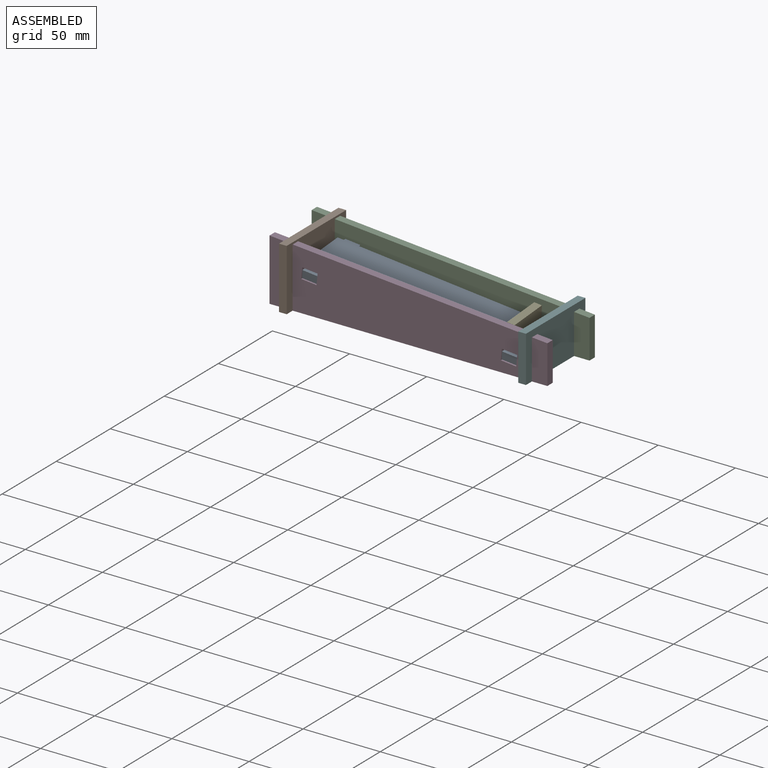
[diagram: assembled view]
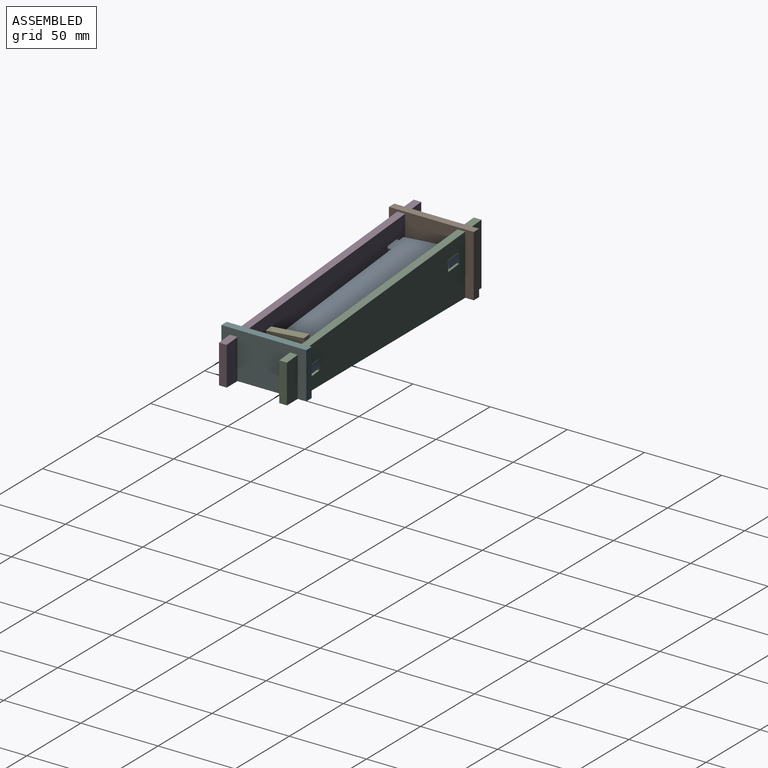
[diagram: assembled view, second angle]
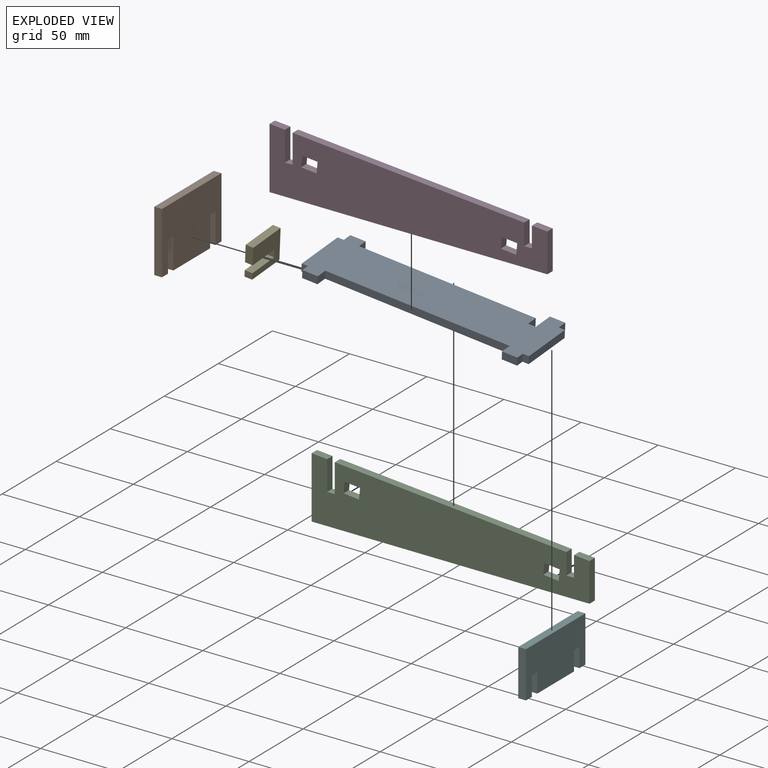
[diagram: exploded view]
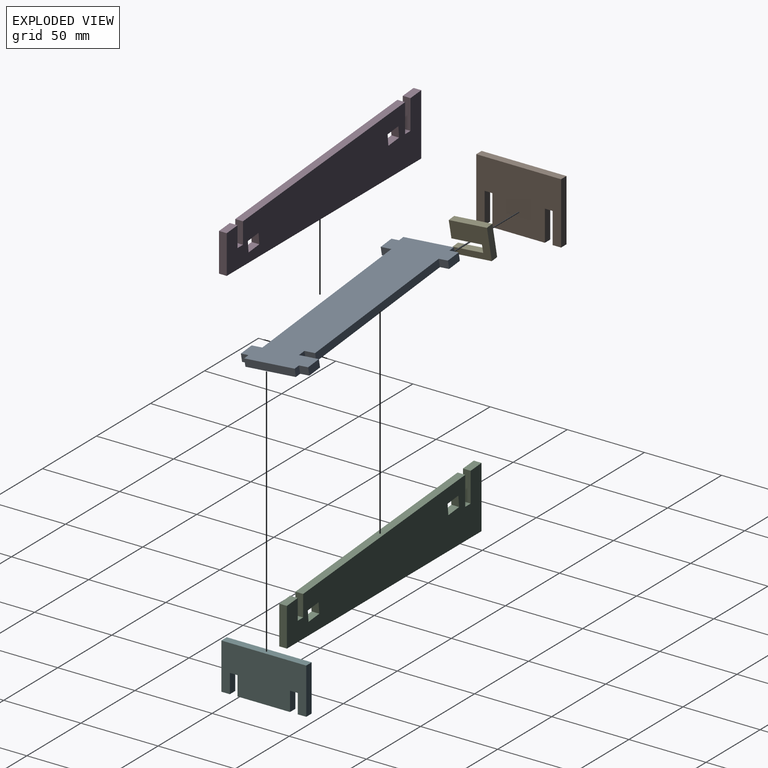
[diagram: exploded view, second angle]
ASSEMBLY  parts=6 mates=4
PART A: 24 faces, bbox 148x44x5 mm
  f0: plane 6x5mm, normal (1,0,0), area 30mm2, adj f8,f9,f11,f22
  f1: plane 6x5mm, normal (-1,0,0), area 30mm2, adj f6,f8,f9,f18
  f2: plane 7x5mm, normal (1,0,0), area 35mm2, adj f8,f9,f15,f17
  f3: plane 7x5mm, normal (1,0,0), area 35mm2, adj f8,f9,f13,f16
  f4: plane 7x5mm, normal (-1,0,0), area 35mm2, adj f8,f9,f14,f16
  f5: plane 6x5mm, normal (1,0,0), area 30mm2, adj f6,f8,f9,f17
  f6: plane 10x5mm, normal (0,1,0), area 50mm2, adj f1,f5,f8,f9
  f7: plane 5x5mm, normal (-1,0,0), area 25mm2, adj f8,f9,f13,f20
  f8: plane 148x44mm, normal (0,0,-1), area 4829mm2, adj f0,f1,f2,f3,f4,f5,f6,f7
  f9: plane 148x44mm, normal (0,0,1), area 4829mm2, adj f0,f1,f2,f3,f4,f5,f6,f7
  f10: plane 5x5mm, normal (1,0,0), area 25mm2, adj f8,f9,f14,f23
  f11: plane 10x5mm, normal (0,1,0), area 50mm2, adj f0,f8,f9,f12
  f12: plane 13x5mm, normal (-1,0,0), area 65mm2, adj f8,f9,f11,f15
  f13: plane 10x5mm, normal (0,-1,0), area 50mm2, adj f3,f7,f8,f9
  f14: plane 10x5mm, normal (0,-1,0), area 50mm2, adj f4,f8,f9,f10
  f15: plane 5x5mm, normal (0,1,0), area 25mm2, adj f2,f8,f9,f12
  f16: plane 120x5mm, normal (0,-1,0), area 600mm2, adj f3,f4,f8,f9
  f17: plane 115x5mm, normal (0,1,0), area 575mm2, adj f2,f5,f8,f9
  f18: plane 5x4mm, normal (0,1,0), area 20mm2, adj f1,f8,f9,f19
  f19: plane 33x5mm, normal (-1,0,0), area 165mm2, adj f8,f9,f18,f20
  f20: plane 5x4mm, normal (0,-1,0), area 20mm2, adj f7,f8,f9,f19
  f21: plane 33x5mm, normal (1,0,0), area 165mm2, adj f8,f9,f22,f23
  f22: plane 5x4mm, normal (0,1,0), area 20mm2, adj f0,f8,f9,f21
  f23: plane 5x4mm, normal (0,-1,0), area 20mm2, adj f8,f9,f10,f21
PART B: 14 faces, bbox 55x40x5 mm
  f0: plane 34x5mm, normal (0,-1,0), area 170mm2, adj f6,f7,f10,f11
  f1: plane 5.5x5mm, normal (0,-1,0), area 27.5mm2, adj f4,f6,f7,f8
  f2: plane 40x5mm, normal (-1,0,0), area 200mm2, adj f3,f5,f6,f7
  f3: plane 5.5x5mm, normal (0,-1,0), area 27.5mm2, adj f2,f6,f7,f13
  f4: plane 40x5mm, normal (1,0,0), area 200mm2, adj f1,f5,f6,f7
  f5: plane 55x5mm, normal (0,1,0), area 275mm2, adj f2,f4,f6,f7
  f6: plane 55x40mm, normal (0,0,1), area 2000mm2, adj f0,f1,f2,f3,f4,f5,f8,f9
  f7: plane 55x40mm, normal (0,0,-1), area 2000mm2, adj f0,f1,f2,f3,f4,f5,f8,f9
  f8: plane 20x5mm, normal (-1,0,0), area 100mm2, adj f1,f6,f7,f9
  f9: plane 5x5mm, normal (0,-1,0), area 25mm2, adj f6,f7,f8,f10
  f10: plane 20x5mm, normal (1,0,0), area 100mm2, adj f0,f6,f7,f9
  f11: plane 20x5mm, normal (-1,0,0), area 100mm2, adj f0,f6,f7,f12
  f12: plane 5x5mm, normal (0,-1,0), area 25mm2, adj f6,f7,f11,f13
  f13: plane 20x5mm, normal (1,0,0), area 100mm2, adj f3,f6,f7,f12
PART C: 22 faces, bbox 180x40x5 mm
  f0: plane 150x12.5mm, normal (0.08,1,0), area 752.6mm2, adj f3,f4,f10,f12
  f1: plane 10x5mm, normal (0.08,1,0), area 50.2mm2, adj f2,f3,f4,f9
  f2: plane 25x5mm, normal (1,0,0), area 125mm2, adj f1,f3,f4,f6
  f3: plane 180x40mm, normal (0,0,1), area 5547.5mm2, adj f0,f1,f2,f5,f6,f7,f8,f9
  f4: plane 180x40mm, normal (0,0,-1), area 5547.5mm2, adj f0,f1,f2,f5,f6,f7,f8,f9
  f5: plane 40x5mm, normal (-1,0,0), area 200mm2, adj f3,f4,f6,f7
  f6: plane 180x5mm, normal (0,-1,0), area 900mm2, adj f2,f3,f4,f5
  f7: plane 10x5mm, normal (0.08,1,0), area 50.2mm2, adj f3,f4,f5,f13
  f8: plane 5x5mm, normal (0,1,0), area 25mm2, adj f3,f4,f9,f10
  f9: plane 13.33x5mm, normal (-1,0,0), area 66.7mm2, adj f1,f3,f4,f8
  f10: plane 13.75x5mm, normal (1,0,0), area 68.8mm2, adj f0,f3,f4,f8
  f11: plane 5x5mm, normal (0,1,0), area 25mm2, adj f3,f4,f12,f13
  f12: plane 18.75x5mm, normal (-1,0,0), area 93.8mm2, adj f0,f3,f4,f11
  f13: plane 19.17x5mm, normal (1,0,0), area 95.8mm2, adj f3,f4,f7,f11
  f14: plane 6.96x5mm, normal (0.99,-0.1,0), area 35mm2, adj f3,f4,f15,f17
  f15: plane 9.95x5mm, normal (-0.1,-0.99,0), area 50mm2, adj f3,f4,f14,f16
  f16: plane 6.96x5mm, normal (-0.99,0.1,0), area 35mm2, adj f3,f4,f15,f17
  f17: plane 9.95x5mm, normal (0.1,0.99,0), area 50mm2, adj f3,f4,f14,f16
  f18: plane 6.96x5mm, normal (0.99,-0.1,0), area 35mm2, adj f3,f4,f19,f21
  f19: plane 9.95x5mm, normal (-0.1,-0.99,0), area 50mm2, adj f3,f4,f18,f20
  f20: plane 6.96x5mm, normal (-0.99,0.1,0), area 35mm2, adj f3,f4,f19,f21
  f21: plane 9.95x5mm, normal (0.1,0.99,0), area 50mm2, adj f3,f4,f18,f20
PART D: 22 faces, bbox 180x40x5 mm
  f0: plane 150x12.5mm, normal (0.08,1,0), area 752.6mm2, adj f3,f4,f10,f12
  f1: plane 10x5mm, normal (0.08,1,0), area 50.2mm2, adj f2,f3,f4,f9
  f2: plane 25x5mm, normal (1,0,0), area 125mm2, adj f1,f3,f4,f6
  f3: plane 180x40mm, normal (0,0,1), area 5547.5mm2, adj f0,f1,f2,f5,f6,f7,f8,f9
  f4: plane 180x40mm, normal (0,0,-1), area 5547.5mm2, adj f0,f1,f2,f5,f6,f7,f8,f9
  f5: plane 40x5mm, normal (-1,0,0), area 200mm2, adj f3,f4,f6,f7
  f6: plane 180x5mm, normal (0,-1,0), area 900mm2, adj f2,f3,f4,f5
  f7: plane 10x5mm, normal (0.08,1,0), area 50.2mm2, adj f3,f4,f5,f13
  f8: plane 5x5mm, normal (0,1,0), area 25mm2, adj f3,f4,f9,f10
  f9: plane 13.33x5mm, normal (-1,0,0), area 66.7mm2, adj f1,f3,f4,f8
  f10: plane 13.75x5mm, normal (1,0,0), area 68.8mm2, adj f0,f3,f4,f8
  f11: plane 5x5mm, normal (0,1,0), area 25mm2, adj f3,f4,f12,f13
  f12: plane 18.75x5mm, normal (-1,0,0), area 93.8mm2, adj f0,f3,f4,f11
  f13: plane 19.17x5mm, normal (1,0,0), area 95.8mm2, adj f3,f4,f7,f11
  f14: plane 6.96x5mm, normal (0.99,-0.1,0), area 35mm2, adj f3,f4,f15,f17
  f15: plane 9.95x5mm, normal (-0.1,-0.99,0), area 50mm2, adj f3,f4,f14,f16
  f16: plane 6.96x5mm, normal (-0.99,0.1,0), area 35mm2, adj f3,f4,f15,f17
  f17: plane 9.95x5mm, normal (0.1,0.99,0), area 50mm2, adj f3,f4,f14,f16
  f18: plane 6.96x5mm, normal (0.99,-0.1,0), area 35mm2, adj f3,f4,f19,f21
  f19: plane 9.95x5mm, normal (-0.1,-0.99,0), area 50mm2, adj f3,f4,f18,f20
  f20: plane 6.96x5mm, normal (-0.99,0.1,0), area 35mm2, adj f3,f4,f19,f21
  f21: plane 9.95x5mm, normal (0.1,0.99,0), area 50mm2, adj f3,f4,f18,f20
PART E: 10 faces, bbox 20x25x5 mm
  f0: plane 5x4mm, normal (0,-1,0), area 20mm2, adj f1,f2,f5,f7
  f1: plane 25x20mm, normal (0,0,1), area 400mm2, adj f0,f3,f4,f5,f6,f7,f8,f9
  f2: plane 25x20mm, normal (0,0,-1), area 400mm2, adj f0,f3,f4,f5,f6,f7,f8,f9
  f3: plane 25x5mm, normal (1,0,0), area 125mm2, adj f1,f2,f4,f6
  f4: plane 20x5mm, normal (0,1,0), area 100mm2, adj f1,f2,f3,f5
  f5: plane 25x5mm, normal (-1,0,0), area 125mm2, adj f0,f1,f2,f4
  f6: plane 11x5mm, normal (0,-1,0), area 55mm2, adj f1,f2,f3,f8
  f7: plane 20x5mm, normal (1,0,0), area 100mm2, adj f0,f1,f2,f9
  f8: plane 20x5mm, normal (-1,0,0), area 100mm2, adj f1,f2,f6,f9
  f9: plane 5x5mm, normal (0,-1,0), area 25mm2, adj f1,f2,f7,f8
PART F: 14 faces, bbox 55x30x5 mm
  f0: plane 34x5mm, normal (0,-1,0), area 170mm2, adj f6,f7,f10,f11
  f1: plane 5.5x5mm, normal (0,-1,0), area 27.5mm2, adj f4,f6,f7,f8
  f2: plane 30x5mm, normal (-1,0,0), area 150mm2, adj f3,f5,f6,f7
  f3: plane 5.5x5mm, normal (0,-1,0), area 27.5mm2, adj f2,f6,f7,f13
  f4: plane 30x5mm, normal (1,0,0), area 150mm2, adj f1,f5,f6,f7
  f5: plane 55x5mm, normal (0,1,0), area 275mm2, adj f2,f4,f6,f7
  f6: plane 55x30mm, normal (0,0,1), area 1525mm2, adj f0,f1,f2,f3,f4,f5,f8,f9
  f7: plane 55x30mm, normal (0,0,-1), area 1525mm2, adj f0,f1,f2,f3,f4,f5,f8,f9
  f8: plane 12.5x5mm, normal (-1,0,0), area 62.5mm2, adj f1,f6,f7,f9
  f9: plane 5x5mm, normal (0,-1,0), area 25mm2, adj f6,f7,f8,f10
  f10: plane 12.5x5mm, normal (1,0,0), area 62.5mm2, adj f0,f6,f7,f9
  f11: plane 12.5x5mm, normal (-1,0,0), area 62.5mm2, adj f0,f6,f7,f12
  f12: plane 5x5mm, normal (0,-1,0), area 25mm2, adj f6,f7,f11,f13
  f13: plane 12.5x5mm, normal (1,0,0), area 62.5mm2, adj f3,f6,f7,f12
PLACE A rot(axis=(0.65,0.76,-0.03),7.6deg) t=(0.39,22.22,15.34)mm
PLACE B rot(axis=(0.58,0.58,0.58),120deg) t=(-80,19.5,20)mm
PLACE C rot(axis=(1,0,0),90deg) t=(0,41.5,20)mm
PLACE D rot(axis=(1,0,0),90deg) t=(0,2.5,20)mm
PLACE E rot(axis=(0.04,-1,-0.05),84.4deg) t=(60.68,21.2,15.22)mm
PLACE F rot(axis=(0.58,-0.58,-0.58),120deg) t=(80,19.5,15)mm
MATE fastened D.f11 <-> B.f12  axis (0,0,1) through (-77.5,0,20)mm
MATE fastened E.f9 <-> A.f15  axis (-0.01,-1,-0.09) through (57.91,28.98,12.65)mm
MATE fastened F.f12 <-> C.f8  axis (0,0,-1) through (77.5,39,12.5)mm
MATE fastened B.f9 <-> C.f11  axis (0,0,-1) through (-77.5,39,20)mm
